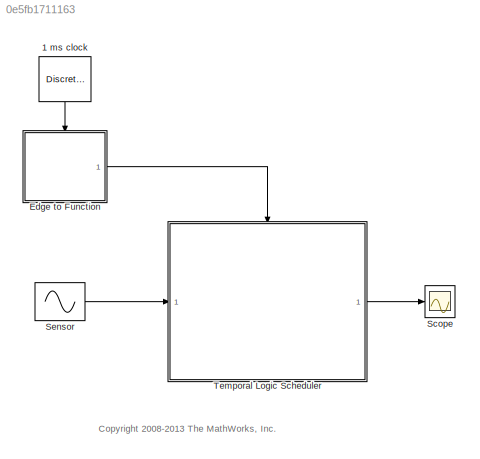
MODEL slx_0e5fb1711163
KIND model
CONFIG AbsTol = auto
CONFIG EnableMultiTasking = on
CONFIG FixedStep = auto
CONFIG MaxStep = auto
CONFIG MinStep = auto
CONFIG RelTol = 1e-3
CONFIG SampleTimeConstraint = Unconstrained
CONFIG Solver = FixedStepDiscrete
CONFIG SolverName = FixedStepDiscrete
CONFIG StartTime = 0.0
CONFIG StopTime = 5
WORKSPACE source: MAT-file member
WORKSPACE deltat = 0.001
BLOCK [DiscretePulseGenerator] 1 ms clock
  Period = 0.001
  Ports = [0, 1]
  PulseType = Time based
  PulseWidth = 10
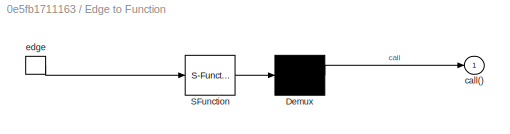
BLOCK [SubSystem] Edge to Function 
  ErrorFcn = Stateflow.Translate.translate
  PermitHierarchicalResolution = ExplicitOnly
  Ports = [0, 1, 0, 1]
  RequestExecContextInheritance = off
  SFBlockType = Chart
  TreatAsAtomicUnit = on
  Variant = off
BLOCK [Demux] Edge to Function / Demux 
  Outputs = 1
  Ports = [1, 1]
BLOCK [S-Function] Edge to Function / SFunction 
  EnableBusSupport = off
  FunctionName = sf_sfun
  PortCounts = [1 1]
  Ports = [1, 1]
  SFcnIsStateOwnerBlock = off
  SFunctionDeploymentMode = off
  Tag = Stateflow S-Function sf_temporal_logic_scheduler_with_sl_fcns 2
BLOCK [Outport] Edge to Function /call()
  IconDisplay = Port number
BLOCK [TriggerPort] Edge to Function /edge
  Ports = [0, 1]
  ShowOutputPort = on
  VariantControl = (inherit)
BLOCK [Scope] Scope
  NumInputPorts = 1
  Ports = [1]
  ScopeSpecificationString = Simulink.scopes.TimeScopeBlockCfg('CurrentConfiguration', extmgr.ConfigurationSet(extmgr.Configuration('Core','General UI',true),extmgr.Configuration('Core','Source UI',true),extmgr.Configuration('Sources','WiredSimulink',true,'DataLoggingSaveFormat','StructureWithTime','DataLoggingLimitDataPoints',true,'DataLoggingDecimation','1'),extmgr.Configuration('Visuals','Time Domain',true,'SerializedDispl...<+1730ch>
BLOCK [Sin] Sensor
  Frequency = 40
  Phase = -pi/8
  Ports = [0, 1]
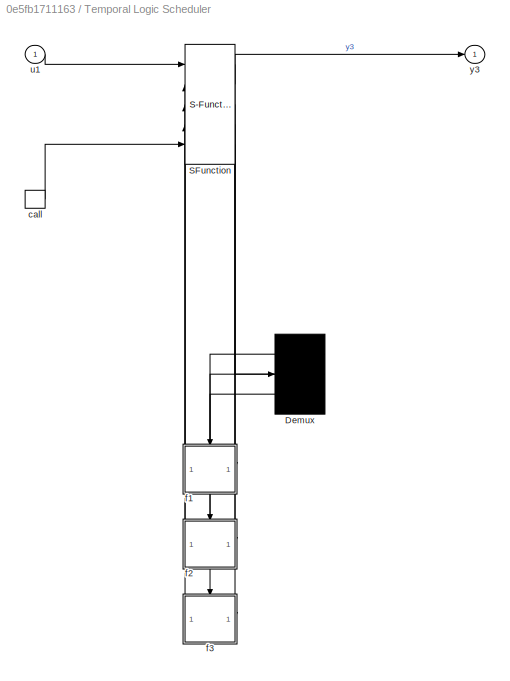
BLOCK [SubSystem] Temporal Logic Scheduler
  ErrorFcn = Stateflow.Translate.translate
  PermitHierarchicalResolution = ExplicitOnly
  Ports = [1, 1, 0, 1]
  RequestExecContextInheritance = off
  SFBlockType = Chart
  TreatAsAtomicUnit = on
  Variant = off
BLOCK [Demux] Temporal Logic Scheduler/ Demux 
  Outputs = 3
  Ports = [1, 3]
BLOCK [S-Function] Temporal Logic Scheduler/ SFunction 
  EnableBusSupport = off
  FunctionName = sf_sfun
  PortCounts = [5 5]
  Ports = [5, 5]
  SFcnIsStateOwnerBlock = off
  SFunctionDeploymentMode = off
  Tag = Stateflow S-Function sf_temporal_logic_scheduler_with_sl_fcns 1
BLOCK [TriggerPort] Temporal Logic Scheduler/call
  Ports = [0, 1]
  ShowOutputPort = on
  TriggerType = function-call
  VariantControl = (inherit)
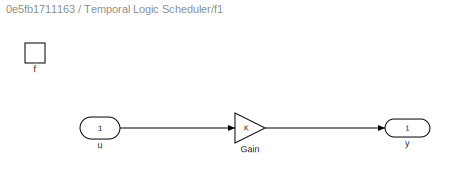
BLOCK [SubSystem] Temporal Logic Scheduler/f1
  Ports = [1, 1, 0, 1]
  PreDeleteFcn = Stateflow.SLINSF.SimulinkMan.removePreDeleteFcn
  RequestExecContextInheritance = off
  UndoDeleteFcn = Stateflow.SLINSF.SimulinkMan.restorePreDeleteFcn
  Variant = off
BLOCK [Gain] Temporal Logic Scheduler/f1/Gain
  OutDataTypeStr = Inherit: Inherit via internal rule
  ParamDataTypeStr = Inherit: Inherit via internal rule
  SaturateOnIntegerOverflow = off
BLOCK [TriggerPort] Temporal Logic Scheduler/f1/f
  CopyFcn = Stateflow.SLINSF.SimulinkMan.removeBlockPreDeleteFcn
  Ports = []
  PreDeleteFcn = Stateflow.SLINSF.SimulinkMan.unsafePredeleteFcn
  TriggerType = function-call
  VariantControl = (inherit)
BLOCK [Inport] Temporal Logic Scheduler/f1/u
  IconDisplay = Port number
BLOCK [Outport] Temporal Logic Scheduler/f1/y
  IconDisplay = Port number
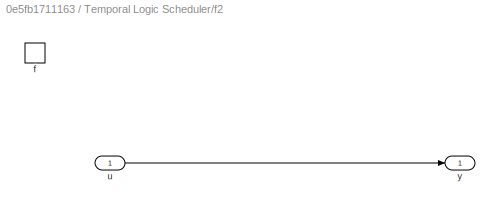
BLOCK [SubSystem] Temporal Logic Scheduler/f2
  Ports = [1, 1, 0, 1]
  PreDeleteFcn = Stateflow.SLINSF.SimulinkMan.removePreDeleteFcn
  RequestExecContextInheritance = off
  UndoDeleteFcn = Stateflow.SLINSF.SimulinkMan.restorePreDeleteFcn
  Variant = off
BLOCK [TriggerPort] Temporal Logic Scheduler/f2/f
  CopyFcn = Stateflow.SLINSF.SimulinkMan.removeBlockPreDeleteFcn
  Ports = []
  PreDeleteFcn = Stateflow.SLINSF.SimulinkMan.unsafePredeleteFcn
  TriggerType = function-call
  VariantControl = (inherit)
BLOCK [Inport] Temporal Logic Scheduler/f2/u
  IconDisplay = Port number
BLOCK [Outport] Temporal Logic Scheduler/f2/y
  IconDisplay = Port number
  InitialOutput = 0
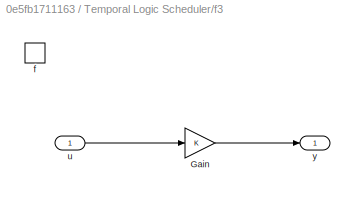
BLOCK [SubSystem] Temporal Logic Scheduler/f3
  Ports = [1, 1, 0, 1]
  PreDeleteFcn = Stateflow.SLINSF.SimulinkMan.removePreDeleteFcn
  RequestExecContextInheritance = off
  UndoDeleteFcn = Stateflow.SLINSF.SimulinkMan.restorePreDeleteFcn
  Variant = off
BLOCK [Gain] Temporal Logic Scheduler/f3/Gain
  OutDataTypeStr = Inherit: Inherit via internal rule
  ParamDataTypeStr = Inherit: Inherit via internal rule
  SaturateOnIntegerOverflow = off
BLOCK [TriggerPort] Temporal Logic Scheduler/f3/f
  CopyFcn = Stateflow.SLINSF.SimulinkMan.removeBlockPreDeleteFcn
  Ports = []
  PreDeleteFcn = Stateflow.SLINSF.SimulinkMan.unsafePredeleteFcn
  TriggerType = function-call
  VariantControl = (inherit)
BLOCK [Inport] Temporal Logic Scheduler/f3/u
  IconDisplay = Port number
BLOCK [Outport] Temporal Logic Scheduler/f3/y
  IconDisplay = Port number
BLOCK [Inport] Temporal Logic Scheduler/u1
  IconDisplay = Port number
BLOCK [Outport] Temporal Logic Scheduler/y3
  IconDisplay = Port number
ANNOTATION (root): <copyright redacted>
LINE 1 ms clock:1 -> Edge to Function :trigger
LINE Edge to Function :1 -> Temporal Logic Scheduler:trigger
LINE Sensor:1 -> Temporal Logic Scheduler:1
LINE Temporal Logic Scheduler:1 -> Scope:1
CHART Temporal Logic
Scheduler states=5 transitions=3
  STATE_LABEL 'y = f1(u)'
  STATE_LABEL 'FastScheduler\ndu: y = u1-y2;\non every(1,call): y1 = f1(y) ;\non every(2,call): y2 = f2(y1);\non every(4,call): y3 = f3(y2);'
  STATE_LABEL 'y = f2(u)'
  STATE_LABEL 'SlowScheduler\ndu: y = u1-y2;\non every(8,call): y1 = f1(y);\non every(16,call): y2 = f2(y1);\non every(32,call): y3 = f3(y2);'
  STATE_LABEL 'y = f3(u)'
CHART Edge to
Function  states=0 transitions=1
